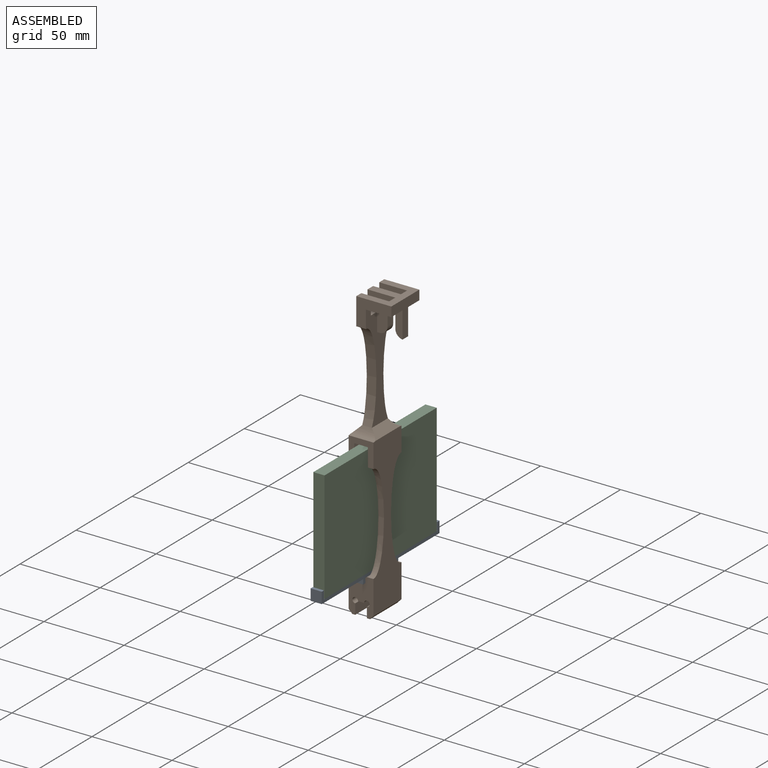
[diagram: assembled view]
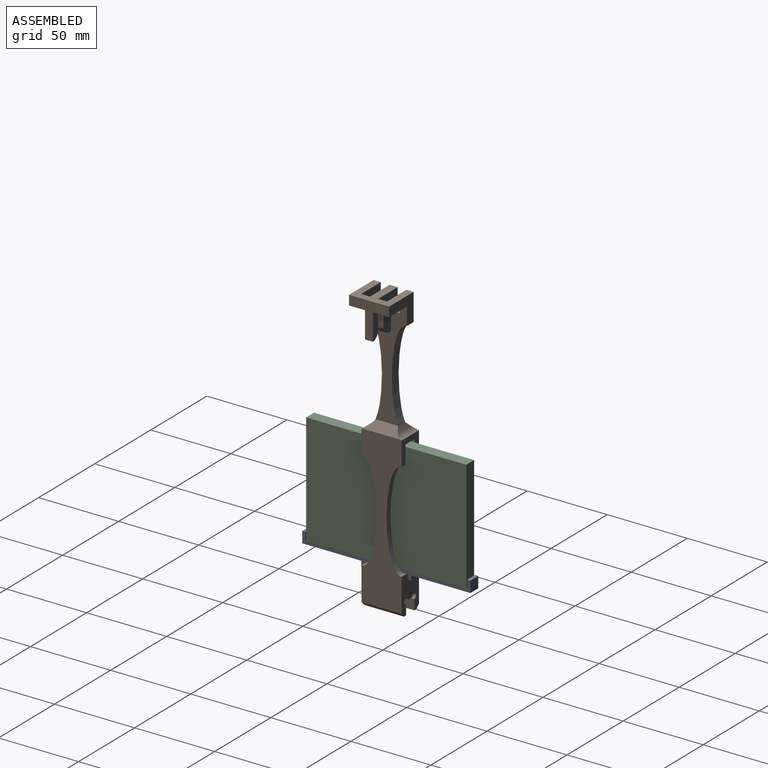
[diagram: assembled view, second angle]
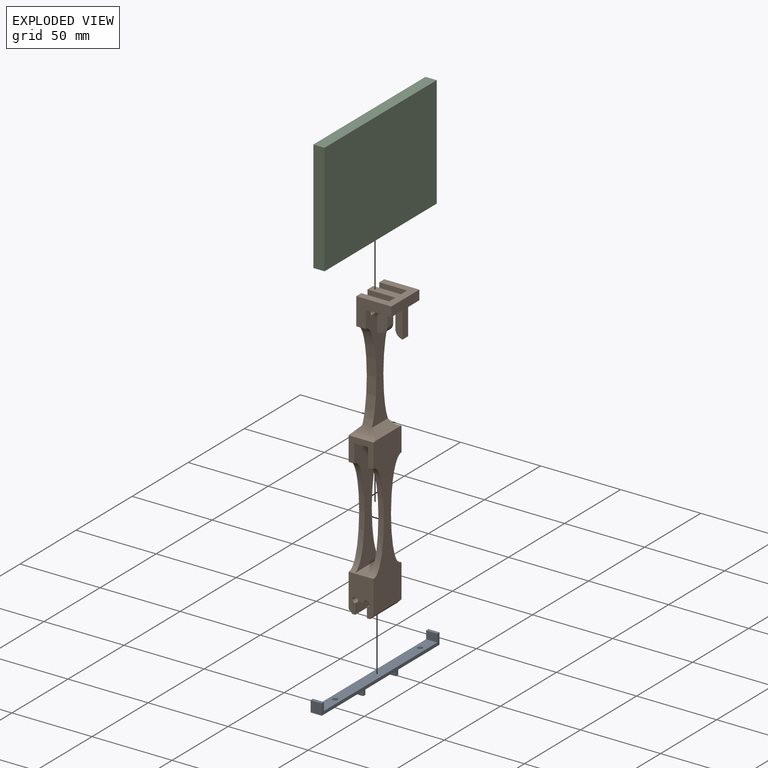
[diagram: exploded view]
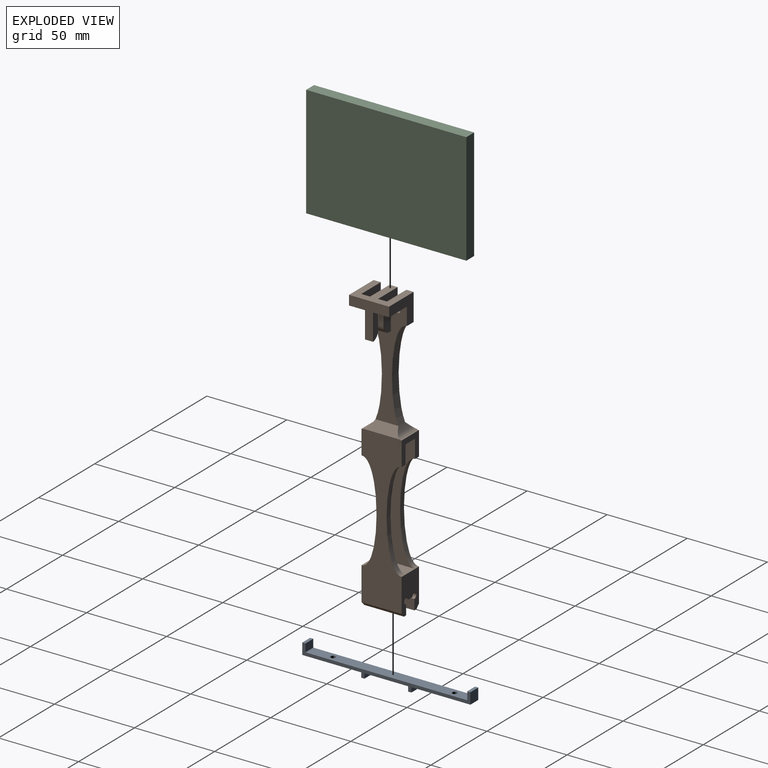
[diagram: exploded view, second angle]
ASSEMBLY  parts=3 mates=2
PART A: 20 faces, bbox 105x7x10 mm
  f0: plane 27.3x7mm, normal (0,0,-1), area 191.1mm2, adj f1,f15,f16,f17
  f1: plane 7x3mm, normal (-1,0,0), area 21mm2, adj f0,f2,f16,f17
  f2: plane 7x2mm, normal (0,0,-1), area 14mm2, adj f1,f3,f16,f17
  f3: plane 7x3mm, normal (1,0,0), area 21mm2, adj f2,f4,f16,f17
  f4: plane 36.85x7mm, normal (0,0,-1), area 250.9mm2, adj f3,f5,f16,f17,f19
  f5: plane 7x7mm, normal (1,0,0), area 49mm2, adj f4,f6,f16,f17
  f6: plane 7x2mm, normal (0,0,1), area 14mm2, adj f5,f7,f16,f17
  f7: plane 7x5mm, normal (-1,0,0), area 35mm2, adj f6,f8,f16,f17
  f8: plane 101x7mm, normal (0,0,1), area 692.9mm2, adj f7,f9,f16,f17,f18,f19
  f9: plane 7x5mm, normal (1,0,0), area 35mm2, adj f8,f10,f16,f17
  f10: plane 7x2mm, normal (0,0,1), area 14mm2, adj f9,f11,f16,f17
  f11: plane 7x7mm, normal (-1,0,0), area 49mm2, adj f10,f12,f16,f17
  f12: plane 36.85x7mm, normal (0,0,-1), area 250.9mm2, adj f11,f13,f16,f17,f18
  f13: plane 7x3mm, normal (-1,0,0), area 21mm2, adj f12,f14,f16,f17
  f14: plane 7x2mm, normal (0,0,-1), area 14mm2, adj f13,f15,f16,f17
  f15: plane 7x3mm, normal (1,0,0), area 21mm2, adj f0,f14,f16,f17
  f16: plane 105x10mm, normal (0,-1,0), area 242mm2, adj f0,f1,f2,f3,f4,f5,f6,f7
  f17: plane 105x10mm, normal (0,1,0), area 242mm2, adj f0,f1,f2,f3,f4,f5,f6,f7
  f18: cylinder r=1.5mm len=3mm, axis (0,0,1), area 18.8mm2, adj f8,f12
  f19: cylinder r=1.5mm len=3mm, axis (0,0,1), area 18.8mm2, adj f4,f8
PART B: 53 faces, bbox 26.7x180x25 mm
  f0: plane 72.83x25mm, normal (1,0,0), area 677.6mm2, adj f3,f22,f23,f28,f29,f30,f32,f34
  f1: plane 25x21.9mm, normal (0,1,0), area 356.1mm2, adj f4,f22,f23,f31,f32,f34,f43,f44
  f2: plane 5x4.8mm, normal (0,-1,0), area 24mm2, adj f32,f33,f34,f36
  f3: plane 15.9x10mm, normal (0,-1,0), area 96.3mm2, adj f0,f23,f31,f37,f43,f44
  f4: plane 78.83x25mm, normal (-1,0,0), area 844.1mm2, adj f1,f22,f23,f28,f29,f32,f34,f44
  f5: plane 15.5x15mm, normal (0,0,1), area 134.7mm2, adj f7,f8,f9,f10,f13,f25,f27,f29
  f6: plane 15.5x15mm, normal (0,0,-1), area 134.7mm2, adj f7,f8,f9,f10,f13,f24,f26,f28
  f7: plane 98.15x25mm, normal (-1,0,0), area 1523.3mm2, adj f5,f6,f11,f12,f24,f25,f28,f29
  f8: plane 73.5x25mm, normal (-1,0,0), area 907.5mm2, adj f5,f6,f13,f14,f26,f27
  f9: plane 98.15x25mm, normal (1,0,0), area 1523.3mm2, adj f5,f6,f11,f12,f26,f27,f28,f29
  f10: plane 73.5x25mm, normal (1,0,0), area 907.5mm2, adj f5,f6,f13,f14,f24,f25
  f11: plane 23.2x15.5mm, normal (0,0,1), area 280.1mm2, adj f7,f9,f14,f15,f16,f17,f18,f19
  f12: plane 23.2x15.5mm, normal (0,0,-1), area 280.1mm2, adj f7,f9,f14,f15,f16,f17,f18,f19
  f13: plane 25x8.5mm, normal (0,-1,0), area 212.5mm2, adj f5,f6,f8,f10
  f14: plane 25x8.5mm, normal (0,1,0), area 212.5mm2, adj f8,f10,f11,f12
  f15: plane 25x0.2mm, normal (-1,0,0), area 5mm2, adj f11,f12,f16,f40
  f16: plane 25x2mm, normal (0,-1,0), area 50mm2, adj f11,f12,f15,f17
  f17: plane 25x6.45mm, normal (1,0,0), area 161.2mm2, adj f11,f12,f16,f42
  f18: plane 25x3.8mm, normal (0,-1,0), area 95mm2, adj f11,f12,f41,f42
  f19: plane 25x6.45mm, normal (-1,0,0), area 161.2mm2, adj f11,f12,f20,f41
  f20: plane 25x2mm, normal (0,-1,0), area 50mm2, adj f11,f12,f19,f21
  f21: plane 25x0.2mm, normal (1,0,0), area 5mm2, adj f11,f12,f20,f39
  f22: plane 21.9x17mm, normal (0,0,1), area 197.4mm2, adj f0,f1,f4,f29,f30,f31
  f23: plane 21.9x17mm, normal (0,0,-1), area 197.4mm2, adj f0,f1,f3,f4,f28,f31
  f24: extruded ~62x9.38mm, area 239.7mm2, adj f6,f7,f10,f12
  f25: extruded ~62x9.38mm, area 239.7mm2, adj f5,f7,f10,f11
  f26: extruded ~62x9.38mm, area 239.7mm2, adj f6,f8,f9,f12
  f27: extruded ~62x9.38mm, area 239.7mm2, adj f5,f8,f9,f11
  f28: extruded ~62.8x15.5mm, area 462mm2, adj f0,f4,f6,f7,f9,f23,f51,f52
  f29: extruded ~62.8x15.5mm, area 462mm2, adj f0,f4,f5,f7,f9,f22,f51,f52
  f30: plane 15.9x10mm, normal (0,-1,0), area 96.3mm2, adj f0,f22,f31,f38,f46,f47
  f31: plane 25x22.5mm, normal (1,0,0), area 232.5mm2, adj f1,f3,f22,f23,f30,f37,f38,f49
  f32: plane 22.5x17.4mm, normal (0,0,-1), area 237.9mm2, adj f0,f1,f2,f4,f33,f35,f43,f45
  f33: plane 11.5x5mm, normal (1,0,0), area 57.5mm2, adj f2,f32,f34,f50
  f34: plane 22.5x17.4mm, normal (0,0,1), area 237.9mm2, adj f0,f1,f2,f4,f33,f35,f46,f48
  f35: plane 5x1.6mm, normal (0,-1,0), area 8mm2, adj f0,f32,f34,f50
  f36: plane 11.53x5mm, normal (-1,0,0), area 57.6mm2, adj f2,f37,f38,f49
  f37: plane 16.5x4.5mm, normal (0,0,-1), area 69mm2, adj f3,f31,f36,f49
  f38: plane 16.5x4.5mm, normal (0,0,1), area 69mm2, adj f30,f31,f36,f49
  f39: plane 25x2.1mm, normal (0.71,-0.71,0), area 74.2mm2, adj f9,f11,f12,f21
  f40: plane 25x2.1mm, normal (-0.71,-0.71,0), area 74.2mm2, adj f7,f11,f12,f15
  f41: cylinder r=1.75mm len=25mm, axis (0,0,1), area 206.2mm2, adj f11,f12,f18,f19
  f42: cylinder r=1.75mm len=25mm, axis (0,0,1), area 206.2mm2, adj f11,f12,f17,f18
  f43: plane 6x5.5mm, normal (-1,0,0), area 33mm2, adj f1,f3,f32,f44
  f44: plane 17.4x11mm, normal (0,0,1), area 134.4mm2, adj f0,f1,f3,f4,f43,f45
  f45: plane 6x5.5mm, normal (0,1,0), area 33mm2, adj f0,f4,f32,f44
  f46: plane 6x5.5mm, normal (-1,0,0), area 33mm2, adj f1,f30,f34,f47
  f47: plane 17.4x11mm, normal (0,0,-1), area 134.4mm2, adj f0,f1,f4,f30,f46,f48
  f48: plane 6x5.5mm, normal (0,1,0), area 33mm2, adj f0,f4,f34,f47
  f49: cylinder r=5mm len=5mm, axis (0,0,1), area 36.8mm2, adj f31,f36,f37,f38
  f50: cylinder r=5mm len=5mm, axis (0,0,-1), area 39.3mm2, adj f32,f33,f34,f35
  f51: plane 22.34x4.75mm, normal (-0.71,0.71,0), area 116.1mm2, adj f4,f7,f28,f29
  f52: plane 22.34x4.75mm, normal (0.71,0.71,0), area 116.1mm2, adj f0,f9,f28,f29
PART C: 6 faces, bbox 69.7x7x100 mm
  f0: plane 100x7mm, normal (1,0,0), area 700mm2, adj f1,f3,f4,f5
  f1: plane 69.7x7mm, normal (0,0,1), area 487.9mm2, adj f0,f2,f4,f5
  f2: plane 100x7mm, normal (-1,0,0), area 700mm2, adj f1,f3,f4,f5
  f3: plane 69.7x7mm, normal (0,0,-1), area 487.9mm2, adj f0,f2,f4,f5
  f4: plane 100x69.7mm, normal (0,-1,0), area 6970mm2, adj f0,f1,f2,f3
  f5: plane 100x69.7mm, normal (0,1,0), area 6970mm2, adj f0,f1,f2,f3
PLACE A rot(axis=(0,0,-1),90deg) t=(-10.6,29.77,-28.57)mm
PLACE B rot(axis=(1,0,0),90deg) t=(-14.1,42.27,-50.27)mm
PLACE C rot(axis=(-0.58,0.58,0.58),120deg) t=(-17.6,29.73,9.78)mm
MATE fastened A.f8 <-> C.f0  axis (0,0,1) through (-14.1,29.73,-25.07)mm
MATE fastened A.f0 <-> B.f14  axis (0,0,-1) through (-14.1,29.77,-27.07)mm
